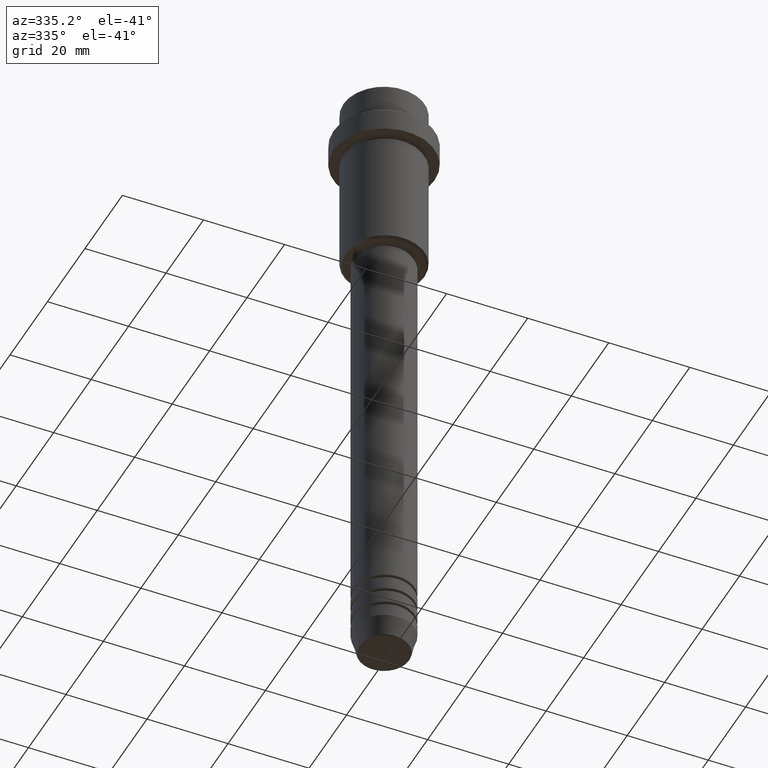
[diagram: clean part render]
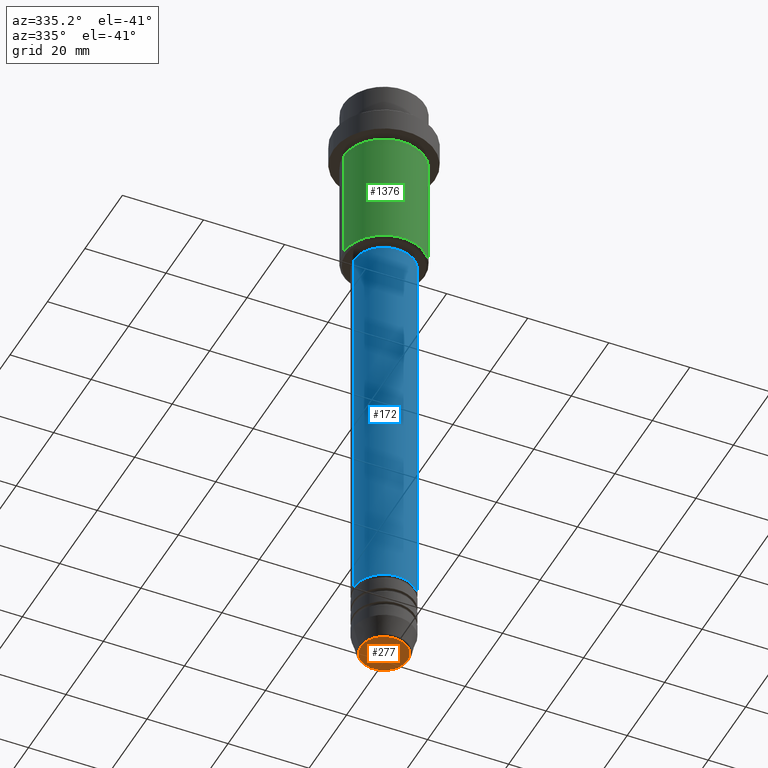
[diagram: same view with three faces highlighted in distinct colors, each labeled with its STEP entity id]
A machine part, auxiliary view with three faces highlighted in distinct colors.
Their STEP definitions:

[orange] entity #277 — the highlighted planar face has unit normal (0, -0, 1).
#27 = ORIENTED_EDGE ( 'NONE', *, *, #718, .T. ) ;
#28 = DIRECTION ( 'NONE',  ( 1.000000000000000000, 0.000000000000000000, 0.000000000000000000 ) ) ;
#128 = ORIENTED_EDGE ( 'NONE', *, *, #1412, .T. ) ;
#167 = VERTEX_POINT ( 'NONE', #385 ) ;
#179 = DIRECTION ( 'NONE',  ( 1.000000000000000000, 0.000000000000000000, 0.000000000000000000 ) ) ;
#265 = CARTESIAN_POINT ( 'NONE',  ( 0.000000000000000000, 0.000000000000000000, -159.9999999999999716 ) ) ;
#269 = AXIS2_PLACEMENT_3D ( 'NONE', #558, #535, #28 ) ;
#277 = ADVANCED_FACE ( 'NONE', ( #968 ), #364, .F. ) ;
#364 = PLANE ( 'NONE',  #639 ) ;
#384 = CIRCLE ( 'NONE', #804, 5.776590543854905668 ) ;
#385 = CARTESIAN_POINT ( 'NONE',  ( -5.776590543854905668, 7.370012612361443628E-16, -159.9999999999999716 ) ) ;
#535 = DIRECTION ( 'NONE',  ( 0.000000000000000000, 0.000000000000000000, -1.000000000000000000 ) ) ;
#558 = CARTESIAN_POINT ( 'NONE',  ( 0.000000000000000000, 0.000000000000000000, -159.9999999999999716 ) ) ;
#639 = AXIS2_PLACEMENT_3D ( 'NONE', #782, #760, #1096 ) ;
#718 = EDGE_CURVE ( 'NONE', #1156, #167, #874, .T. ) ;
#760 = DIRECTION ( 'NONE',  ( 0.000000000000000000, -0.000000000000000000, 1.000000000000000000 ) ) ;
#782 = CARTESIAN_POINT ( 'NONE',  ( 0.000000000000000000, 0.000000000000000000, -159.9999999999999716 ) ) ;
#804 = AXIS2_PLACEMENT_3D ( 'NONE', #265, #920, #179 ) ;
#813 = EDGE_LOOP ( 'NONE', ( #27, #128 ) ) ;
#874 = CIRCLE ( 'NONE', #269, 5.776590543854905668 ) ;
#920 = DIRECTION ( 'NONE',  ( 0.000000000000000000, 0.000000000000000000, -1.000000000000000000 ) ) ;
#967 = CARTESIAN_POINT ( 'NONE',  ( 5.776590543854905668, 0.000000000000000000, -159.9999999999999716 ) ) ;
#968 = FACE_OUTER_BOUND ( 'NONE', #813, .T. ) ;
#1096 = DIRECTION ( 'NONE',  ( 1.000000000000000000, 0.000000000000000000, 0.000000000000000000 ) ) ;
#1156 = VERTEX_POINT ( 'NONE', #967 ) ;
#1412 = EDGE_CURVE ( 'NONE', #167, #1156, #384, .T. ) ;

[blue] entity #172 — the highlighted cylindrical surface (edge-blend (fillet) strip) has radius 7.5 mm, axis along (-0, -0, 1).
#51 = DIRECTION ( 'NONE',  ( 1.000000000000000000, 0.000000000000000000, 0.000000000000000000 ) ) ;
#60 = VERTEX_POINT ( 'NONE', #1263 ) ;
#156 = AXIS2_PLACEMENT_3D ( 'NONE', #838, #1168, #947 ) ;
#172 = ADVANCED_FACE ( 'NONE', ( #1040 ), #1018, .T. ) ;
#190 = DIRECTION ( 'NONE',  ( -0.000000000000000000, -0.000000000000000000, 1.000000000000000000 ) ) ;
#212 = CARTESIAN_POINT ( 'NONE',  ( 7.500000000000000000, 0.000000000000000000, -142.9999999999998863 ) ) ;
#278 = EDGE_CURVE ( 'NONE', #1221, #60, #427, .T. ) ;
#362 = CIRCLE ( 'NONE', #156, 7.500000000000000000 ) ;
#370 = ORIENTED_EDGE ( 'NONE', *, *, #1113, .F. ) ;
#427 = LINE ( 'NONE', #1416, #961 ) ;
#432 = VERTEX_POINT ( 'NONE', #1241 ) ;
#474 = LINE ( 'NONE', #1222, #1333 ) ;
#515 = DIRECTION ( 'NONE',  ( 1.000000000000000000, 0.000000000000000000, 0.000000000000000000 ) ) ;
#522 = EDGE_LOOP ( 'NONE', ( #1264, #815, #1231, #370 ) ) ;
#526 = AXIS2_PLACEMENT_3D ( 'NONE', #1348, #914, #51 ) ;
#581 = EDGE_CURVE ( 'NONE', #432, #1221, #362, .T. ) ;
#741 = CARTESIAN_POINT ( 'NONE',  ( -7.500000000000000000, 9.184850993605147944E-16, -46.00000000000000711 ) ) ;
#801 = AXIS2_PLACEMENT_3D ( 'NONE', #1051, #864, #515 ) ;
#815 = ORIENTED_EDGE ( 'NONE', *, *, #581, .T. ) ;
#838 = CARTESIAN_POINT ( 'NONE',  ( 0.000000000000000000, 0.000000000000000000, -142.9999999999998863 ) ) ;
#864 = DIRECTION ( 'NONE',  ( -0.000000000000000000, -0.000000000000000000, 1.000000000000000000 ) ) ;
#914 = DIRECTION ( 'NONE',  ( -0.000000000000000000, -0.000000000000000000, 1.000000000000000000 ) ) ;
#947 = DIRECTION ( 'NONE',  ( 1.000000000000000000, 0.000000000000000000, 0.000000000000000000 ) ) ;
#961 = VECTOR ( 'NONE', #971, 1000.000000000000000 ) ;
#971 = DIRECTION ( 'NONE',  ( -0.000000000000000000, -0.000000000000000000, 1.000000000000000000 ) ) ;
#1017 = VERTEX_POINT ( 'NONE', #741 ) ;
#1018 = CYLINDRICAL_SURFACE ( 'NONE', #526, 7.500000000000000000 ) ;
#1040 = FACE_OUTER_BOUND ( 'NONE', #522, .T. ) ;
#1051 = CARTESIAN_POINT ( 'NONE',  ( 0.000000000000000000, 0.000000000000000000, -46.00000000000000711 ) ) ;
#1084 = EDGE_CURVE ( 'NONE', #432, #1017, #474, .T. ) ;
#1113 = EDGE_CURVE ( 'NONE', #1017, #60, #1188, .T. ) ;
#1168 = DIRECTION ( 'NONE',  ( -0.000000000000000000, -0.000000000000000000, 1.000000000000000000 ) ) ;
#1188 = CIRCLE ( 'NONE', #801, 7.500000000000000000 ) ;
#1221 = VERTEX_POINT ( 'NONE', #212 ) ;
#1222 = CARTESIAN_POINT ( 'NONE',  ( -7.500000000000000000, 9.184850993605147944E-16, 0.000000000000000000 ) ) ;
#1231 = ORIENTED_EDGE ( 'NONE', *, *, #278, .T. ) ;
#1241 = CARTESIAN_POINT ( 'NONE',  ( -7.500000000000000000, 9.184850993605147944E-16, -142.9999999999998863 ) ) ;
#1263 = CARTESIAN_POINT ( 'NONE',  ( 7.500000000000000000, 0.000000000000000000, -46.00000000000000711 ) ) ;
#1264 = ORIENTED_EDGE ( 'NONE', *, *, #1084, .F. ) ;
#1333 = VECTOR ( 'NONE', #190, 1000.000000000000000 ) ;
#1348 = CARTESIAN_POINT ( 'NONE',  ( 0.000000000000000000, 0.000000000000000000, 0.000000000000000000 ) ) ;
#1416 = CARTESIAN_POINT ( 'NONE',  ( 7.500000000000000000, 0.000000000000000000, 0.000000000000000000 ) ) ;

[green] entity #1376 — the highlighted cylindrical surface (partial cylindrical patch) has radius 10 mm, axis along (-0, -0, 1).
#34 = CARTESIAN_POINT ( 'NONE',  ( -10.00000000000000000, 1.224646799147353256E-15, 0.000000000000000000 ) ) ;
#54 = EDGE_CURVE ( 'NONE', #68, #1052, #1143, .T. ) ;
#68 = VERTEX_POINT ( 'NONE', #814 ) ;
#112 = DIRECTION ( 'NONE',  ( 1.000000000000000000, 0.000000000000000000, 0.000000000000000000 ) ) ;
#123 = CYLINDRICAL_SURFACE ( 'NONE', #361, 10.00000000000000000 ) ;
#191 = DIRECTION ( 'NONE',  ( -0.000000000000000000, -0.000000000000000000, 1.000000000000000000 ) ) ;
#254 = ORIENTED_EDGE ( 'NONE', *, *, #54, .F. ) ;
#290 = AXIS2_PLACEMENT_3D ( 'NONE', #393, #908, #1349 ) ;
#310 = AXIS2_PLACEMENT_3D ( 'NONE', #1161, #191, #759 ) ;
#361 = AXIS2_PLACEMENT_3D ( 'NONE', #890, #430, #112 ) ;
#393 = CARTESIAN_POINT ( 'NONE',  ( 0.000000000000000000, 0.000000000000000000, -16.00000000000000000 ) ) ;
#396 = LINE ( 'NONE', #786, #706 ) ;
#425 = ORIENTED_EDGE ( 'NONE', *, *, #1328, .F. ) ;
#430 = DIRECTION ( 'NONE',  ( -0.000000000000000000, -0.000000000000000000, 1.000000000000000000 ) ) ;
#449 = FACE_OUTER_BOUND ( 'NONE', #1406, .T. ) ;
#568 = VERTEX_POINT ( 'NONE', #727 ) ;
#573 = VECTOR ( 'NONE', #1102, 1000.000000000000000 ) ;
#594 = CIRCLE ( 'NONE', #310, 10.00000000000000000 ) ;
#706 = VECTOR ( 'NONE', #1150, 1000.000000000000000 ) ;
#727 = CARTESIAN_POINT ( 'NONE',  ( 10.00000000000000000, 0.000000000000000000, -44.50000000000000711 ) ) ;
#759 = DIRECTION ( 'NONE',  ( -1.000000000000000000, 0.000000000000000000, 0.000000000000000000 ) ) ;
#774 = ORIENTED_EDGE ( 'NONE', *, *, #1085, .T. ) ;
#784 = CARTESIAN_POINT ( 'NONE',  ( 10.00000000000000000, 0.000000000000000000, -16.00000000000000000 ) ) ;
#786 = CARTESIAN_POINT ( 'NONE',  ( 10.00000000000000000, 0.000000000000000000, 0.000000000000000000 ) ) ;
#814 = CARTESIAN_POINT ( 'NONE',  ( -10.00000000000000000, 1.224646799147353256E-15, -16.00000000000000000 ) ) ;
#886 = CARTESIAN_POINT ( 'NONE',  ( -10.00000000000000000, 1.224646799147353256E-15, -44.50000000000000711 ) ) ;
#890 = CARTESIAN_POINT ( 'NONE',  ( 0.000000000000000000, 0.000000000000000000, 0.000000000000000000 ) ) ;
#899 = LINE ( 'NONE', #34, #573 ) ;
#908 = DIRECTION ( 'NONE',  ( -0.000000000000000000, -0.000000000000000000, 1.000000000000000000 ) ) ;
#1002 = ORIENTED_EDGE ( 'NONE', *, *, #1250, .T. ) ;
#1052 = VERTEX_POINT ( 'NONE', #784 ) ;
#1085 = EDGE_CURVE ( 'NONE', #568, #1052, #396, .T. ) ;
#1102 = DIRECTION ( 'NONE',  ( -0.000000000000000000, -0.000000000000000000, 1.000000000000000000 ) ) ;
#1143 = CIRCLE ( 'NONE', #290, 10.00000000000000000 ) ;
#1150 = DIRECTION ( 'NONE',  ( -0.000000000000000000, -0.000000000000000000, 1.000000000000000000 ) ) ;
#1161 = CARTESIAN_POINT ( 'NONE',  ( 0.000000000000000000, 0.000000000000000000, -44.50000000000000711 ) ) ;
#1250 = EDGE_CURVE ( 'NONE', #1326, #568, #594, .T. ) ;
#1326 = VERTEX_POINT ( 'NONE', #886 ) ;
#1328 = EDGE_CURVE ( 'NONE', #1326, #68, #899, .T. ) ;
#1349 = DIRECTION ( 'NONE',  ( 1.000000000000000000, 0.000000000000000000, 0.000000000000000000 ) ) ;
#1376 = ADVANCED_FACE ( 'NONE', ( #449 ), #123, .T. ) ;
#1406 = EDGE_LOOP ( 'NONE', ( #425, #1002, #774, #254 ) ) ;